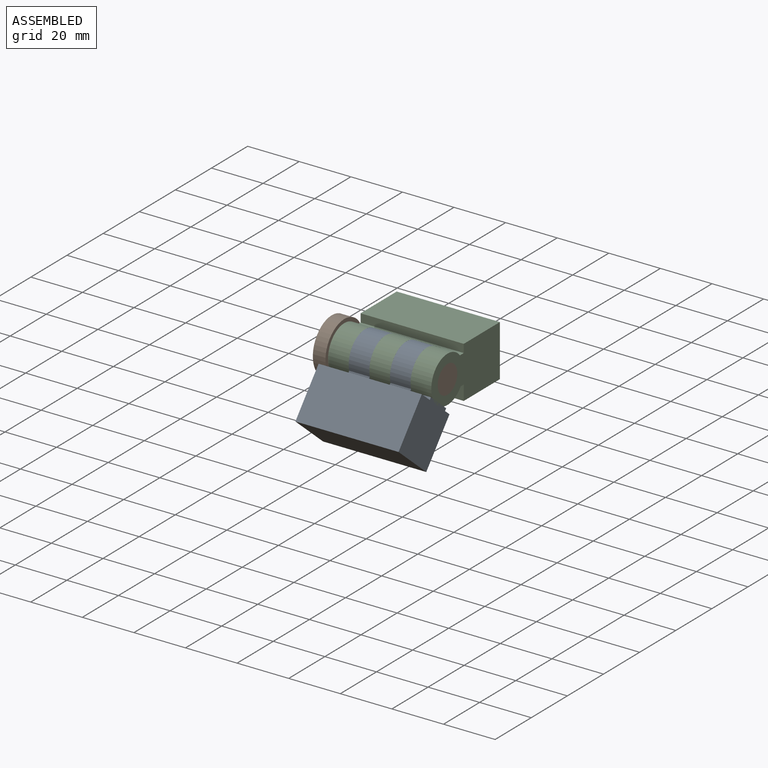
[diagram: assembled view]
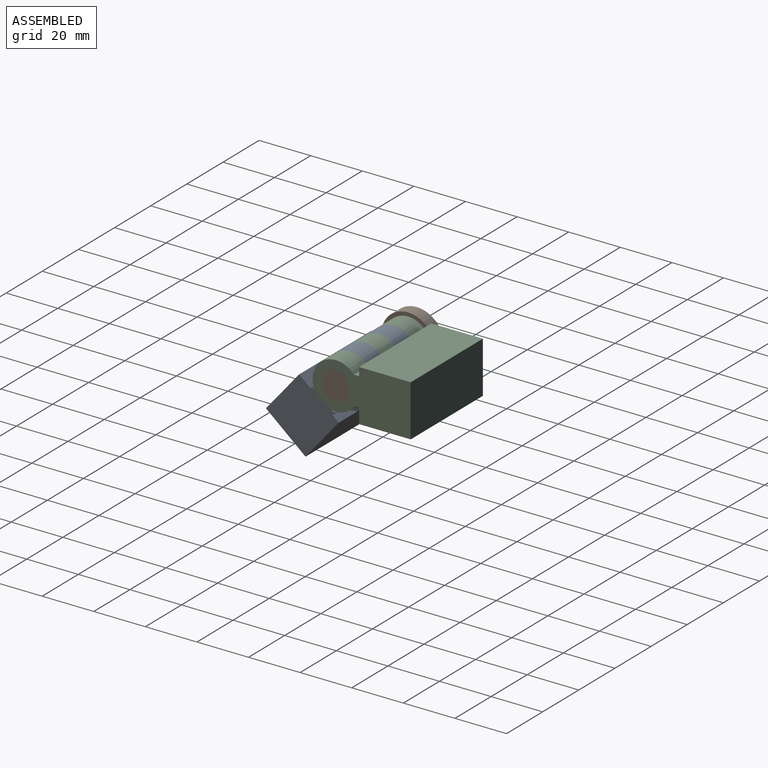
[diagram: assembled view, second angle]
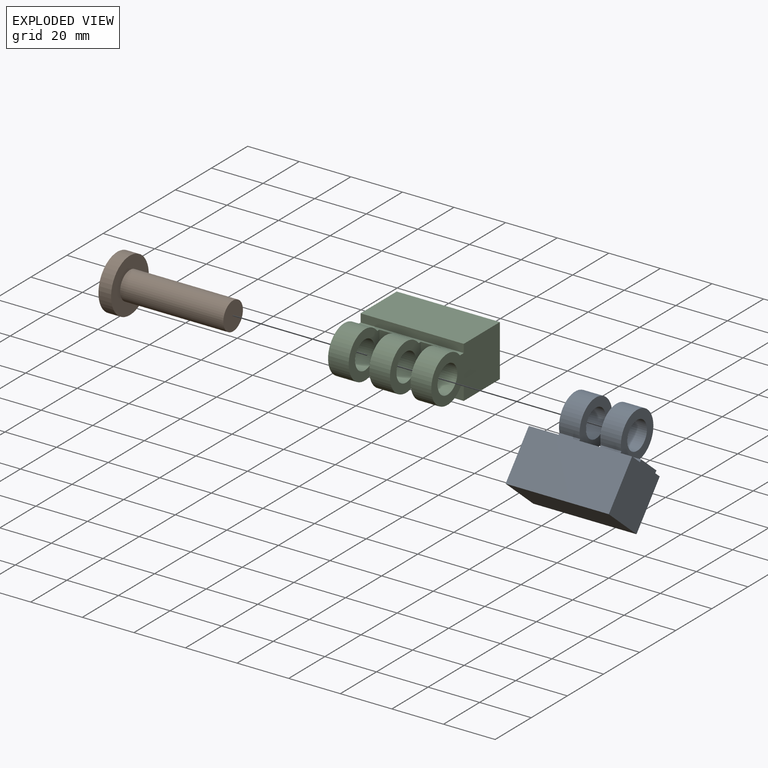
[diagram: exploded view]
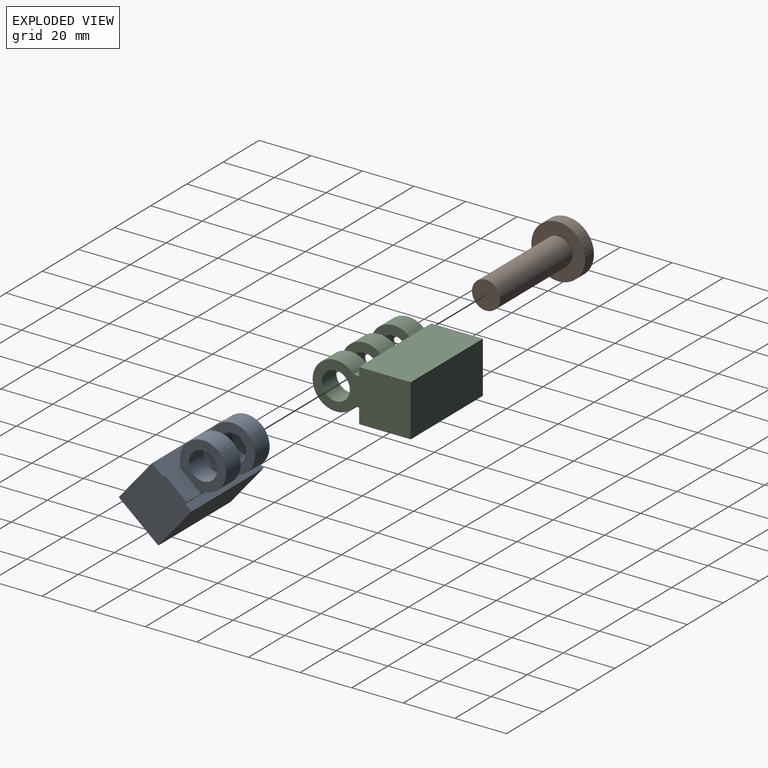
[diagram: exploded view, second angle]
ASSEMBLY  parts=3 mates=3
PART A: 20 faces, bbox 40x38x20 mm
  f0: plane 20.93x20mm, normal (-1,0,0), area 410.3mm2, adj f4,f5,f6,f7,f8,f9,f10,f17
  f1: plane 20.98x20mm, normal (1,0,0), area 410.8mm2, adj f4,f5,f6,f7,f8,f9,f10,f12
  f2: cylinder r=9mm len=18mm, axis (-1,0,0), area 357.3mm2, adj f4,f5,f13,f16
  f3: cylinder r=9mm len=18mm, axis (-1,0,0), area 357.3mm2, adj f4,f5,f11,f14
  f4: plane 40x2.09mm, normal (0,0,1), area 56.3mm2, adj f0,f1,f2,f3,f6,f11,f12,f13
  f5: plane 40x1.7mm, normal (0,0,-1), area 50.1mm2, adj f0,f1,f2,f3,f7,f11,f12,f13
  f6: plane 40x3.21mm, normal (0,-1,0), area 128.4mm2, adj f0,f1,f4,f9
  f7: plane 40x5.76mm, normal (0,-1,0), area 230.3mm2, adj f0,f1,f5,f10
  f8: plane 40x20mm, normal (0,1,0), area 800mm2, adj f0,f1,f9,f10
  f9: plane 40x20mm, normal (0,0,1), area 800mm2, adj f0,f1,f6,f8
  f10: plane 40x20mm, normal (0,0,-1), area 800mm2, adj f0,f1,f7,f8
  f11: plane 18x17.1mm, normal (1,0,0), area 158.8mm2, adj f3,f4,f5,f12,f18
  f12: plane 11.03x8mm, normal (-0.01,-1,0), area 88.3mm2, adj f1,f4,f5,f11
  f13: plane 18x16.99mm, normal (1,0,0), area 157.5mm2, adj f2,f4,f5,f15,f19
  f14: plane 18x17.1mm, normal (-1,0,0), area 158.8mm2, adj f3,f4,f5,f15,f18
  f15: plane 11.03x8mm, normal (0.01,-1,0), area 88.3mm2, adj f4,f5,f13,f14
  f16: plane 18x16.99mm, normal (-1,0,0), area 157.5mm2, adj f2,f4,f5,f17,f19
  f17: plane 11.03x8mm, normal (-0.01,-1,0), area 88.3mm2, adj f0,f4,f5,f16
  f18: cylinder r=5.43mm len=10.85mm, axis (-1,0,0), area 272.7mm2, adj f11,f14
  f19: cylinder r=5.43mm len=10.85mm, axis (-1,0,0), area 272.7mm2, adj f13,f16
PART B: 5 faces, bbox 44.9x20.9x20.9 mm
  f0: plane 10.85x10.85mm, normal (1,0,0), area 92.5mm2, adj f1
  f1: cylinder r=5.43mm len=40mm, axis (-1,0,0), area 1363.6mm2, adj f0,f4
  f2: cylinder r=10.43mm len=20.85mm, axis (1,0,0), area 321mm2, adj f3,f4
  f3: plane 20.85x20.85mm, normal (-1,0,0), area 341.5mm2, adj f2
  f4: plane 20.85x20.85mm, normal (1,0,0), area 249mm2, adj f1,f2
PART C: 21 faces, bbox 40x38x20 mm
  f0: cylinder r=9mm len=18mm, axis (-1,0,0), area 357.3mm2, adj f11,f13,f15,f19
  f1: cylinder r=9mm len=18mm, axis (-1,0,0), area 357.3mm2, adj f6,f11,f13,f16
  f2: cylinder r=5.43mm len=10.85mm, axis (-1,0,0), area 272.7mm2, adj f6,f16
  f3: plane 40x3.21mm, normal (0,-1,0), area 128.4mm2, adj f4,f6,f8,f11
  f4: plane 38x20.02mm, normal (-1,0,0), area 568.7mm2, adj f3,f5,f7,f8,f9,f10,f11,f12
  f5: plane 40x5.76mm, normal (0,-1,0), area 230.3mm2, adj f4,f6,f9,f13
  f6: plane 38x20.02mm, normal (1,0,0), area 568.7mm2, adj f1,f2,f3,f5,f7,f8,f9,f11
  f7: plane 40x20mm, normal (0,1,0), area 800mm2, adj f4,f6,f8,f9
  f8: plane 40x20mm, normal (0,0,1), area 800mm2, adj f3,f4,f6,f7
  f9: plane 40x20mm, normal (0,0,-1), area 800mm2, adj f4,f5,f6,f7
  f10: cylinder r=9mm len=18mm, axis (-1,0,0), area 357.3mm2, adj f4,f11,f13,f18
  f11: plane 40x2.09mm, normal (0,0,1), area 65.4mm2, adj f0,f1,f3,f4,f6,f10,f14,f15
  f12: cylinder r=5.43mm len=10.85mm, axis (-1,0,0), area 272.7mm2, adj f4,f18
  f13: plane 40x1.7mm, normal (0,0,-1), area 56.1mm2, adj f0,f1,f4,f5,f6,f10,f14,f15
  f14: plane 11.03x8mm, normal (0,-1,0), area 88.2mm2, adj f11,f13,f15,f16
  f15: plane 18x17.1mm, normal (1,0,0), area 158.8mm2, adj f0,f11,f13,f14,f20
  f16: plane 18x17.1mm, normal (-1,0,0), area 158.8mm2, adj f1,f2,f11,f13,f14
  f17: plane 11.03x8mm, normal (0,-1,0), area 88.2mm2, adj f11,f13,f18,f19
  f18: plane 18x16.99mm, normal (1,0,0), area 157.5mm2, adj f10,f11,f12,f13,f17
  f19: plane 18x16.99mm, normal (-1,0,0), area 157.5mm2, adj f0,f11,f13,f17,f20
  f20: cylinder r=5.43mm len=10.85mm, axis (-1,0,0), area 272.7mm2, adj f15,f19
PLACE A rot(axis=(-1,0,0),130deg) t=(-31.65,-12.56,27.74)mm
PLACE B t=(-31.65,10.67,16.52)mm
PLACE C t=(-31.65,10.67,16.52)mm
MATE slider B.f1 <-> C.f0  axis (1,0,0) through (-31.65,1.67,27.55)mm
MATE cylindrical A.f2 <-> C.f0  axis (1,0,0) through (0.35,1.67,27.55)mm
MATE planar A.f11 <-> C.f16  axis (1,0,0) through (0.35,1.8,27.67)mm
